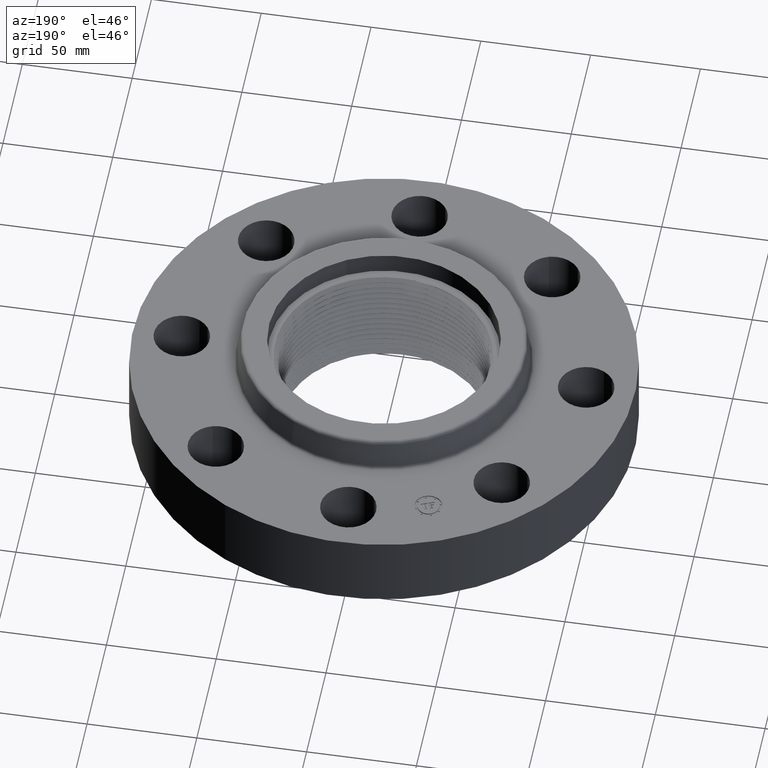
[diagram: clean part render]
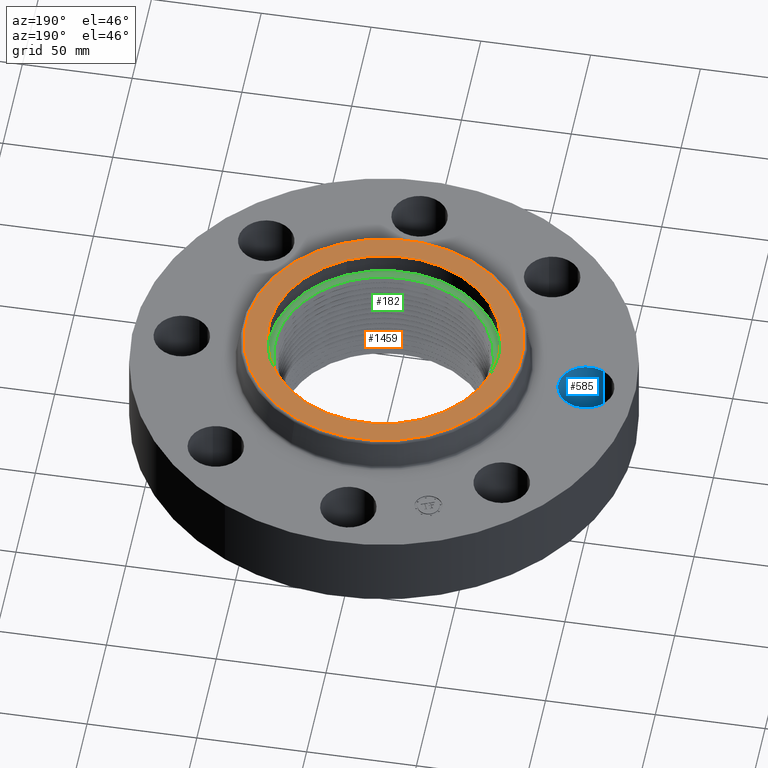
[diagram: same view with three faces highlighted in distinct colors, each labeled with its STEP entity id]
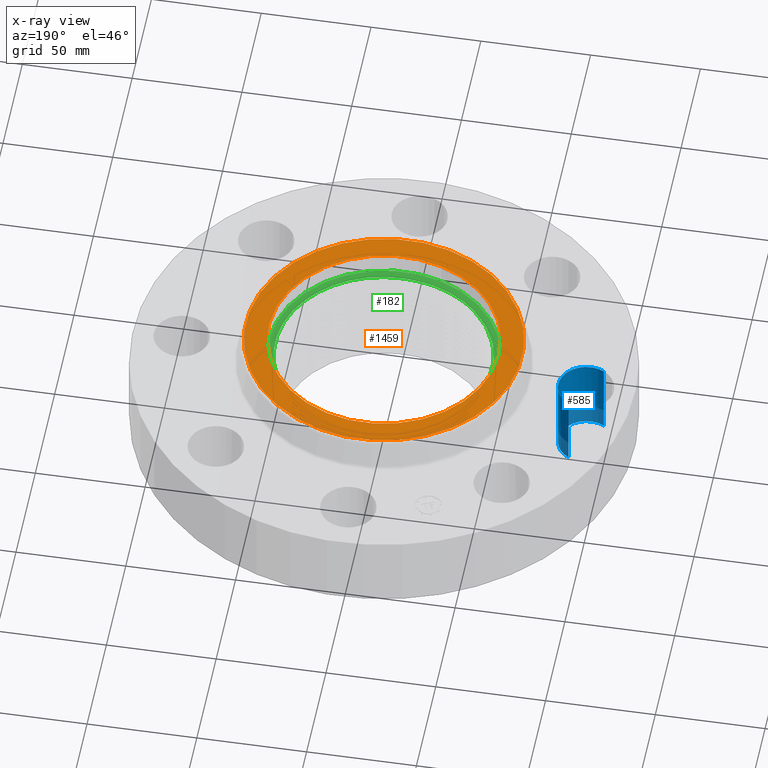
[diagram: x-ray of the same camera — body ghosted, the three highlighted faces saturated]
A machine part, auxiliary view with three faces highlighted in distinct colors.
The next image is the same camera in x-ray (body ghosted, the three faces saturated) — at least one of them is partly hidden behind the body in this view.
Their STEP definitions:

[orange] entity #1459 — the highlighted planar face has unit normal (0, 0, -1).
#335=AXIS2_PLACEMENT_3D('Circle Axis2P3D',#333,#334,$) ;
#361=AXIS2_PLACEMENT_3D('Circle Axis2P3D',#359,#360,$) ;
#1058=AXIS2_PLACEMENT_3D('Circle Axis2P3D',#1056,#1057,$) ;
#1082=AXIS2_PLACEMENT_3D('Circle Axis2P3D',#1080,#1081,$) ;
#1449=AXIS2_PLACEMENT_3D('Plane Axis2P3D',#1446,#1447,#1448) ;
#333=CARTESIAN_POINT('Axis2P3D Location',(0.,0.,1.94000000001)) ;
#337=CARTESIAN_POINT('Vertex',(-0.990013737222,1.81220799031,1.94000000001)) ;
#339=CARTESIAN_POINT('Vertex',(0.990013737222,-1.81220799031,1.94000000001)) ;
#359=CARTESIAN_POINT('Axis2P3D Location',(0.,0.,1.94000000001)) ;
#1053=CARTESIAN_POINT('Vertex',(-1.18701492297,-2.17281624199,1.94000000001)) ;
#1056=CARTESIAN_POINT('Axis2P3D Location',(0.,0.,1.94000000001)) ;
#1060=CARTESIAN_POINT('Vertex',(1.18701492297,2.17281624199,1.94000000001)) ;
#1080=CARTESIAN_POINT('Axis2P3D Location',(0.,0.,1.94000000001)) ;
#1446=CARTESIAN_POINT('Axis2P3D Location',(0.,2.47591091294,1.94000000001)) ;
#334=DIRECTION('Axis2P3D Direction',(0.,0.,0.0393700787402)) ;
#360=DIRECTION('Axis2P3D Direction',(0.,0.,0.0393700787402)) ;
#1057=DIRECTION('Axis2P3D Direction',(0.,0.,-0.0393700787402)) ;
#1081=DIRECTION('Axis2P3D Direction',(0.,0.,-0.0393700787402)) ;
#1447=DIRECTION('Axis2P3D Direction',(0.,0.,-0.0393700787402)) ;
#1448=DIRECTION('Axis2P3D XDirection',(0.0393700787402,0.,0.)) ;
#1452=ORIENTED_EDGE('',*,*,#1084,.F.) ;
#1453=ORIENTED_EDGE('',*,*,#1062,.F.) ;
#1456=ORIENTED_EDGE('',*,*,#341,.T.) ;
#1457=ORIENTED_EDGE('',*,*,#363,.T.) ;
#1458=FACE_BOUND('',#1455,.T.) ;
#1459=ADVANCED_FACE('PartBody',(#1454,#1458),#1450,.F.) ;
#336=CIRCLE('generated circle',#335,2.06500000001) ;
#362=CIRCLE('generated circle',#361,2.06500000001) ;
#1059=CIRCLE('generated circle',#1058,2.47591091294) ;
#1083=CIRCLE('generated circle',#1082,2.47591091294) ;
#341=EDGE_CURVE('',#338,#340,#336,.F.) ;
#363=EDGE_CURVE('',#340,#338,#362,.F.) ;
#1062=EDGE_CURVE('',#1054,#1061,#1059,.T.) ;
#1084=EDGE_CURVE('',#1061,#1054,#1083,.T.) ;
#1451=EDGE_LOOP('',(#1452,#1453)) ;
#1455=EDGE_LOOP('',(#1456,#1457)) ;
#1454=FACE_OUTER_BOUND('',#1451,.T.) ;
#1450=PLANE('',#1449) ;
#338=VERTEX_POINT('',#337) ;
#340=VERTEX_POINT('',#339) ;
#1054=VERTEX_POINT('',#1053) ;
#1061=VERTEX_POINT('',#1060) ;

[blue] entity #585 — the highlighted cylindrical surface (edge-blend (fillet) strip) has radius 12.7 mm, axis along (0, 0, -1).
#541=AXIS2_PLACEMENT_3D('Cylinder Axis2P3D',#538,#539,#540) ;
#554=AXIS2_PLACEMENT_3D('Circle Axis2P3D',#552,#553,$) ;
#561=AXIS2_PLACEMENT_3D('Circle Axis2P3D',#559,#560,$) ;
#575=AXIS2_PLACEMENT_3D('Circle Axis2P3D',#573,#574,$) ;
#538=CARTESIAN_POINT('Axis2P3D Location',(-3.62500000001,-1.22538416614E-015,1.37606299213)) ;
#543=CARTESIAN_POINT('Line Origine',(-3.38528723071,0.438791280947,0.690000000003)) ;
#547=CARTESIAN_POINT('Vertex',(-3.38528723071,0.438791280947,0.)) ;
#549=CARTESIAN_POINT('Vertex',(-3.38528723071,0.438791280947,1.38000000001)) ;
#552=CARTESIAN_POINT('Axis2P3D Location',(-3.62500000001,-1.22538416614E-015,0.)) ;
#556=CARTESIAN_POINT('Vertex',(-3.12500000001,-1.67844740731E-015,0.)) ;
#559=CARTESIAN_POINT('Axis2P3D Location',(-3.62500000001,-1.22538416614E-015,0.)) ;
#563=CARTESIAN_POINT('Vertex',(-3.86471276932,-0.438791280947,0.)) ;
#566=CARTESIAN_POINT('Line Origine',(-3.86471276932,-0.438791280947,0.690000000003)) ;
#570=CARTESIAN_POINT('Vertex',(-3.86471276932,-0.438791280947,1.38000000001)) ;
#573=CARTESIAN_POINT('Axis2P3D Location',(-3.62500000001,-1.22538416614E-015,1.38000000001)) ;
#539=DIRECTION('Axis2P3D Direction',(0.,0.,-0.0393700787402)) ;
#540=DIRECTION('Axis2P3D XDirection',(-0.0188750212049,-0.0345504945626,-0.)) ;
#544=DIRECTION('Vector Direction',(0.,0.,-0.0393700787402)) ;
#553=DIRECTION('Axis2P3D Direction',(0.,0.,-0.0393700787402)) ;
#560=DIRECTION('Axis2P3D Direction',(0.,0.,-0.0393700787402)) ;
#567=DIRECTION('Vector Direction',(0.,0.,-0.0393700787402)) ;
#574=DIRECTION('Axis2P3D Direction',(0.,0.,-0.0393700787402)) ;
#545=VECTOR('Line Direction',#544,0.0393700787402) ;
#568=VECTOR('Line Direction',#567,0.0393700787402) ;
#579=ORIENTED_EDGE('',*,*,#551,.F.) ;
#580=ORIENTED_EDGE('',*,*,#558,.T.) ;
#581=ORIENTED_EDGE('',*,*,#565,.T.) ;
#582=ORIENTED_EDGE('',*,*,#572,.T.) ;
#583=ORIENTED_EDGE('',*,*,#577,.F.) ;
#585=ADVANCED_FACE('PartBody',(#584),#542,.F.) ;
#555=CIRCLE('generated circle',#554,0.500000000002) ;
#562=CIRCLE('generated circle',#561,0.500000000002) ;
#576=CIRCLE('generated circle',#575,0.500000000002) ;
#542=CYLINDRICAL_SURFACE('generated cylinder',#541,0.500000000002) ;
#551=EDGE_CURVE('',#548,#550,#546,.F.) ;
#558=EDGE_CURVE('',#548,#557,#555,.T.) ;
#565=EDGE_CURVE('',#557,#564,#562,.T.) ;
#572=EDGE_CURVE('',#564,#571,#569,.F.) ;
#577=EDGE_CURVE('',#550,#571,#576,.T.) ;
#578=EDGE_LOOP('',(#579,#580,#581,#582,#583)) ;
#584=FACE_OUTER_BOUND('',#578,.T.) ;
#546=LINE('Line',#543,#545) ;
#569=LINE('Line',#566,#568) ;
#548=VERTEX_POINT('',#547) ;
#550=VERTEX_POINT('',#549) ;
#557=VERTEX_POINT('',#556) ;
#564=VERTEX_POINT('',#563) ;
#571=VERTEX_POINT('',#570) ;

[green] entity #182 — the highlighted planar face has unit normal (0, 0, 1).
#38=AXIS2_PLACEMENT_3D('Plane Axis2P3D',#35,#36,#37) ;
#42=AXIS2_PLACEMENT_3D('Circle Axis2P3D',#40,#41,$) ;
#51=AXIS2_PLACEMENT_3D('Circle Axis2P3D',#49,#50,$) ;
#60=AXIS2_PLACEMENT_3D('Circle Axis2P3D',#58,#59,$) ;
#35=CARTESIAN_POINT('Axis2P3D Location',(2.76244469119E-016,-6.71378962923E-016,1.56000000001)) ;
#40=CARTESIAN_POINT('Axis2P3D Location',(0.,0.,1.56000000001)) ;
#44=CARTESIAN_POINT('Vertex',(-0.990013737222,1.81220799031,1.56000000001)) ;
#46=CARTESIAN_POINT('Vertex',(0.990013737222,-1.81220799031,1.56000000001)) ;
#49=CARTESIAN_POINT('Axis2P3D Location',(0.,0.,1.56000000001)) ;
#58=CARTESIAN_POINT('Axis2P3D Location',(-2.83237999983E-016,9.79094320929E-017,1.56000000001)) ;
#62=CARTESIAN_POINT('Vertex',(-0.224608114076,-1.88232291383,1.56)) ;
#64=CARTESIAN_POINT('Vertex',(-0.0646460179758,-1.89457363256,1.56000000001)) ;
#68=CARTESIAN_POINT('Control Point',(-0.94939940171,1.73786663072,1.56000000001)) ;
#69=CARTESIAN_POINT('Control Point',(-1.0763004271,1.66572364472,1.56000000001)) ;
#70=CARTESIAN_POINT('Control Point',(-1.19645402666,1.58194237972,1.56000000001)) ;
#71=CARTESIAN_POINT('Control Point',(-1.30842294889,1.48735529152,1.56000000001)) ;
#72=CARTESIAN_POINT('Control Point',(-1.51345161091,1.2787627536,1.56000000001)) ;
#73=CARTESIAN_POINT('Control Point',(-1.67650450453,1.03651584071,1.56000000001)) ;
#74=CARTESIAN_POINT('Control Point',(-1.74650928002,0.908256112893,1.56000000001)) ;
#75=CARTESIAN_POINT('Control Point',(-1.83302372264,0.707414511626,1.56000000001)) ;
#76=CARTESIAN_POINT('Control Point',(-1.89067734467,0.497448751376,1.56000000001)) ;
#77=CARTESIAN_POINT('Control Point',(-1.90662517364,0.426647114782,1.56000000001)) ;
#78=CARTESIAN_POINT('Control Point',(-1.92873436472,0.30167569892,1.56000000001)) ;
#79=CARTESIAN_POINT('Control Point',(-1.94061773804,0.175469763843,1.56000000001)) ;
#80=CARTESIAN_POINT('Control Point',(-1.94382173456,0.121241845756,1.56000000001)) ;
#81=CARTESIAN_POINT('Control Point',(-1.94863112385,-0.0778324988887,1.56000000001)) ;
#82=CARTESIAN_POINT('Control Point',(-1.92800610591,-0.276362903749,1.56000000001)) ;
#83=CARTESIAN_POINT('Control Point',(-1.89958829029,-0.418791537836,1.56000000001)) ;
#84=CARTESIAN_POINT('Control Point',(-1.81141711866,-0.713884483918,1.56000000001)) ;
#85=CARTESIAN_POINT('Control Point',(-1.66717726792,-0.98563193457,1.56000000001)) ;
#86=CARTESIAN_POINT('Control Point',(-1.57596968026,-1.12083753892,1.56000000001)) ;
#87=CARTESIAN_POINT('Control Point',(-1.3783303937,-1.35598345134,1.56000000001)) ;
#88=CARTESIAN_POINT('Control Point',(-1.1389367411,-1.54705773973,1.56000000001)) ;
#89=CARTESIAN_POINT('Control Point',(-1.01822912932,-1.62607544578,1.56000000001)) ;
#90=CARTESIAN_POINT('Control Point',(-0.792594883682,-1.74512325985,1.56000000001)) ;
#91=CARTESIAN_POINT('Control Point',(-0.551062445032,-1.82498509984,1.56000000001)) ;
#92=CARTESIAN_POINT('Control Point',(-0.443520878431,-1.85204802982,1.56000000001)) ;
#93=CARTESIAN_POINT('Control Point',(-0.334441006878,-1.87118591578,1.56000000001)) ;
#94=CARTESIAN_POINT('Control Point',(-0.224608112151,-1.88232293419,1.56000000001)) ;
#95=CARTESIAN_POINT('Vertex',(-0.94939940171,1.73786663072,1.56000000001)) ;
#99=CARTESIAN_POINT('Control Point',(-0.15640444261,1.98828226416,1.56000000001)) ;
#100=CARTESIAN_POINT('Control Point',(-0.3151001044,1.97311003502,1.56000000001)) ;
#101=CARTESIAN_POINT('Control Point',(-0.472145943628,1.94209218576,1.56000000001)) ;
#102=CARTESIAN_POINT('Control Point',(-0.625435626102,1.89544595856,1.56000000001)) ;
#103=CARTESIAN_POINT('Control Point',(-0.780691332623,1.8305606161,1.56000000001)) ;
#104=CARTESIAN_POINT('Control Point',(-0.927415248689,1.75021071362,1.56000000001)) ;
#105=CARTESIAN_POINT('Control Point',(-0.93476571442,1.74613456803,1.56000000001)) ;
#106=CARTESIAN_POINT('Control Point',(-0.9420937394,1.74201988553,1.56000000001)) ;
#107=CARTESIAN_POINT('Control Point',(-0.94939940171,1.73786663072,1.56000000001)) ;
#108=CARTESIAN_POINT('Vertex',(-0.15640444261,1.98828226416,1.56000000001)) ;
#112=CARTESIAN_POINT('Control Point',(-0.15640444261,1.98828226416,1.56000000001)) ;
#113=CARTESIAN_POINT('Control Point',(-0.12516004858,1.99026230077,1.56000000001)) ;
#114=CARTESIAN_POINT('Control Point',(-0.093881201421,1.99162892196,1.56000000001)) ;
#115=CARTESIAN_POINT('Control Point',(-0.0625839593482,1.99238121149,1.56000000001)) ;
#116=CARTESIAN_POINT('Control Point',(-0.0312844276733,1.99251888329,1.56000000001)) ;
#117=CARTESIAN_POINT('Control Point',(1.27974572474E-006,1.99204228713,1.56000000001)) ;
#118=CARTESIAN_POINT('Vertex',(1.27974572482E-006,1.99204228713,1.56000000001)) ;
#122=CARTESIAN_POINT('Control Point',(1.27974572489E-006,1.99204228713,1.56000000001)) ;
#123=CARTESIAN_POINT('Control Point',(0.146414850989,1.98981187072,1.56000000001)) ;
#124=CARTESIAN_POINT('Control Point',(0.292525552957,1.97412821833,1.56000000001)) ;
#125=CARTESIAN_POINT('Control Point',(0.436649500505,1.94503478817,1.56000000001)) ;
#126=CARTESIAN_POINT('Control Point',(0.717727913299,1.86071007668,1.56000000001)) ;
#127=CARTESIAN_POINT('Control Point',(0.978182805379,1.72669037764,1.56000000001)) ;
#128=CARTESIAN_POINT('Control Point',(1.10177842152,1.64786089992,1.56000000001)) ;
#129=CARTESIAN_POINT('Control Point',(1.34730229228,1.45720898024,1.56000000001)) ;
#130=CARTESIAN_POINT('Control Point',(1.55097761503,1.22257056011,1.56000000001)) ;
#131=CARTESIAN_POINT('Control Point',(1.6454021161,1.08760529956,1.56000000001)) ;
#132=CARTESIAN_POINT('Control Point',(1.79574528723,0.816257449095,1.56000000001)) ;
#133=CARTESIAN_POINT('Control Point',(1.89005144537,0.521443309514,1.56000000001)) ;
#134=CARTESIAN_POINT('Control Point',(1.92136586867,0.379091989727,1.56000000001)) ;
#135=CARTESIAN_POINT('Control Point',(1.95044480332,0.144543234502,1.56000000001)) ;
#136=CARTESIAN_POINT('Control Point',(1.94399281085,-0.0909096784565,1.56000000001)) ;
#137=CARTESIAN_POINT('Control Point',(1.93624866914,-0.181156733883,1.56000000001)) ;
#138=CARTESIAN_POINT('Control Point',(1.90252533481,-0.41396377108,1.56000000001)) ;
#139=CARTESIAN_POINT('Control Point',(1.83405296902,-0.639363222597,1.56000000001)) ;
#140=CARTESIAN_POINT('Control Point',(1.77910927667,-0.77362012946,1.56000000001)) ;
#141=CARTESIAN_POINT('Control Point',(1.64492463961,-1.03011060898,1.56000000001)) ;
#142=CARTESIAN_POINT('Control Point',(1.46582283986,-1.25698352268,1.56000000001)) ;
#143=CARTESIAN_POINT('Control Point',(1.36595768443,-1.36162479924,1.56000000001)) ;
#144=CARTESIAN_POINT('Control Point',(1.21702777459,-1.49090766292,1.56000000001)) ;
#145=CARTESIAN_POINT('Control Point',(1.05361939895,-1.59965959031,1.56000000001)) ;
#146=CARTESIAN_POINT('Control Point',(1.00882541251,-1.6272988336,1.56000000001)) ;
#147=CARTESIAN_POINT('Control Point',(0.963129032846,-1.65337055688,1.56000000001)) ;
#148=CARTESIAN_POINT('Control Point',(0.916604343911,-1.6778364941,1.56000000001)) ;
#149=CARTESIAN_POINT('Vertex',(0.916604343911,-1.6778364941,1.56000000001)) ;
#153=CARTESIAN_POINT('Control Point',(0.916604343911,-1.6778364941,1.56000000001)) ;
#154=CARTESIAN_POINT('Control Point',(0.781340105883,-1.74896789594,1.56000000001)) ;
#155=CARTESIAN_POINT('Control Point',(0.639074358358,-1.80652614491,1.56000000001)) ;
#156=CARTESIAN_POINT('Control Point',(0.491613845133,-1.84957657331,1.56000000001)) ;
#157=CARTESIAN_POINT('Control Point',(0.303501178916,-1.88450784934,1.56000000001)) ;
#158=CARTESIAN_POINT('Control Point',(0.113583878425,-1.89569437335,1.56000000001)) ;
#159=CARTESIAN_POINT('Control Point',(0.0757202809757,-1.89697806265,1.56000000001)) ;
#160=CARTESIAN_POINT('Control Point',(0.0378478810665,-1.89731674188,1.56000000001)) ;
#161=CARTESIAN_POINT('Control Point',(-1.8492339872E-006,-1.89671116009,1.56000000001)) ;
#162=CARTESIAN_POINT('Vertex',(-1.84923398715E-006,-1.89671116009,1.56000000001)) ;
#166=CARTESIAN_POINT('Control Point',(-0.0646460175083,-1.89457363515,1.56000000001)) ;
#167=CARTESIAN_POINT('Control Point',(-0.0517276123582,-1.89522154533,1.56000000001)) ;
#168=CARTESIAN_POINT('Control Point',(-0.0388027138861,-1.89575932239,1.56000000001)) ;
#169=CARTESIAN_POINT('Control Point',(-0.0258725993127,-1.89618688605,1.56000000001)) ;
#170=CARTESIAN_POINT('Control Point',(-0.0129385496047,-1.89650417763,1.56000000001)) ;
#171=CARTESIAN_POINT('Control Point',(-1.84923398649E-006,-1.89671116009,1.56000000001)) ;
#36=DIRECTION('Axis2P3D Direction',(0.,0.,0.0393700787402)) ;
#37=DIRECTION('Axis2P3D XDirection',(0.0393700787402,0.,0.)) ;
#41=DIRECTION('Axis2P3D Direction',(0.,0.,0.0393700787402)) ;
#50=DIRECTION('Axis2P3D Direction',(0.,0.,0.0393700787402)) ;
#59=DIRECTION('Axis2P3D Direction',(0.,0.,0.0393700787402)) ;
#55=ORIENTED_EDGE('',*,*,#48,.T.) ;
#56=ORIENTED_EDGE('',*,*,#53,.T.) ;
#174=ORIENTED_EDGE('',*,*,#66,.F.) ;
#175=ORIENTED_EDGE('',*,*,#97,.F.) ;
#176=ORIENTED_EDGE('',*,*,#110,.F.) ;
#177=ORIENTED_EDGE('',*,*,#120,.T.) ;
#178=ORIENTED_EDGE('',*,*,#151,.T.) ;
#179=ORIENTED_EDGE('',*,*,#164,.T.) ;
#180=ORIENTED_EDGE('',*,*,#172,.F.) ;
#181=FACE_BOUND('',#173,.T.) ;
#182=ADVANCED_FACE('PartBody',(#57,#181),#39,.T.) ;
#67=B_SPLINE_CURVE_WITH_KNOTS('',5,(#68,#69,#70,#71,#72,#73,#74,#75,#76,#77,#78,#79,#80,#81,#82,#83,#84,#85,#86,#87,#88,#89,#90,#91,#92,#93,#94),.UNSPECIFIED.,.F.,.U.,(6,3,3,3,3,3,3,3,6),(0.,25.98896968,51.9817700831,64.9774370295,74.7240738521,100.72680378,130.009533618,156.042459594,176.14374035),.UNSPECIFIED.) ;
#98=B_SPLINE_CURVE_WITH_KNOTS('',5,(#99,#100,#101,#102,#103,#104,#105,#106,#107),.UNSPECIFIED.,.F.,.U.,(6,3,6),(0.,28.2823519449,29.7785308431),.UNSPECIFIED.) ;
#111=B_SPLINE_CURVE_WITH_KNOTS('',5,(#112,#113,#114,#115,#116,#117),.UNSPECIFIED.,.F.,.U.,(6,6),(0.,5.55411152612),.UNSPECIFIED.) ;
#121=B_SPLINE_CURVE_WITH_KNOTS('',5,(#122,#123,#124,#125,#126,#127,#128,#129,#130,#131,#132,#133,#134,#135,#136,#137,#138,#139,#140,#141,#142,#143,#144,#145,#146,#147,#148),.UNSPECIFIED.,.F.,.U.,(6,3,3,3,3,3,3,3,6),(0.,25.992613584,52.0038499999,81.2779026771,107.278046696,123.51744781,149.496245538,175.475733436,184.995359562),.UNSPECIFIED.) ;
#152=B_SPLINE_CURVE_WITH_KNOTS('',5,(#153,#154,#155,#156,#157,#158,#159,#160,#161),.UNSPECIFIED.,.F.,.U.,(6,3,6),(0.,27.6770248817,34.5598566062),.UNSPECIFIED.) ;
#165=B_SPLINE_CURVE_WITH_KNOTS('',5,(#166,#167,#168,#169,#170,#171),.UNSPECIFIED.,.F.,.U.,(6,6),(2.95532699349,5.30781751362),.UNSPECIFIED.) ;
#43=CIRCLE('generated circle',#42,2.06500000001) ;
#52=CIRCLE('generated circle',#51,2.06500000001) ;
#61=CIRCLE('generated circle',#60,1.8956762268) ;
#48=EDGE_CURVE('',#45,#47,#43,.T.) ;
#53=EDGE_CURVE('',#47,#45,#52,.T.) ;
#66=EDGE_CURVE('',#63,#65,#61,.T.) ;
#97=EDGE_CURVE('',#96,#63,#67,.T.) ;
#110=EDGE_CURVE('',#109,#96,#98,.T.) ;
#120=EDGE_CURVE('',#109,#119,#111,.T.) ;
#151=EDGE_CURVE('',#119,#150,#121,.T.) ;
#164=EDGE_CURVE('',#150,#163,#152,.T.) ;
#172=EDGE_CURVE('',#65,#163,#165,.T.) ;
#54=EDGE_LOOP('',(#55,#56)) ;
#173=EDGE_LOOP('',(#174,#175,#176,#177,#178,#179,#180)) ;
#57=FACE_OUTER_BOUND('',#54,.T.) ;
#39=PLANE('',#38) ;
#45=VERTEX_POINT('',#44) ;
#47=VERTEX_POINT('',#46) ;
#63=VERTEX_POINT('',#62) ;
#65=VERTEX_POINT('',#64) ;
#96=VERTEX_POINT('',#95) ;
#109=VERTEX_POINT('',#108) ;
#119=VERTEX_POINT('',#118) ;
#150=VERTEX_POINT('',#149) ;
#163=VERTEX_POINT('',#162) ;